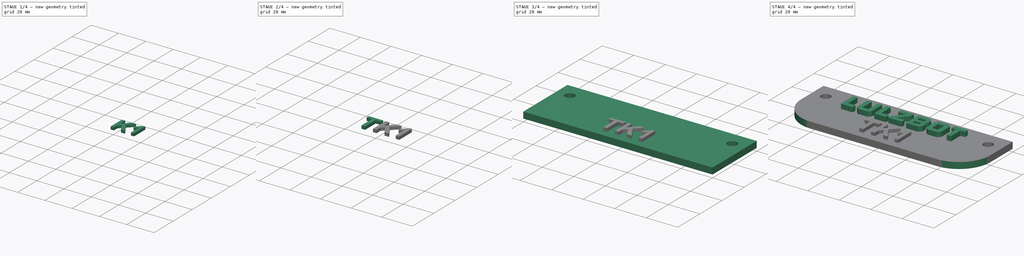
[diagram: build sequence overview — one tinted view per stage of 4, left to right]
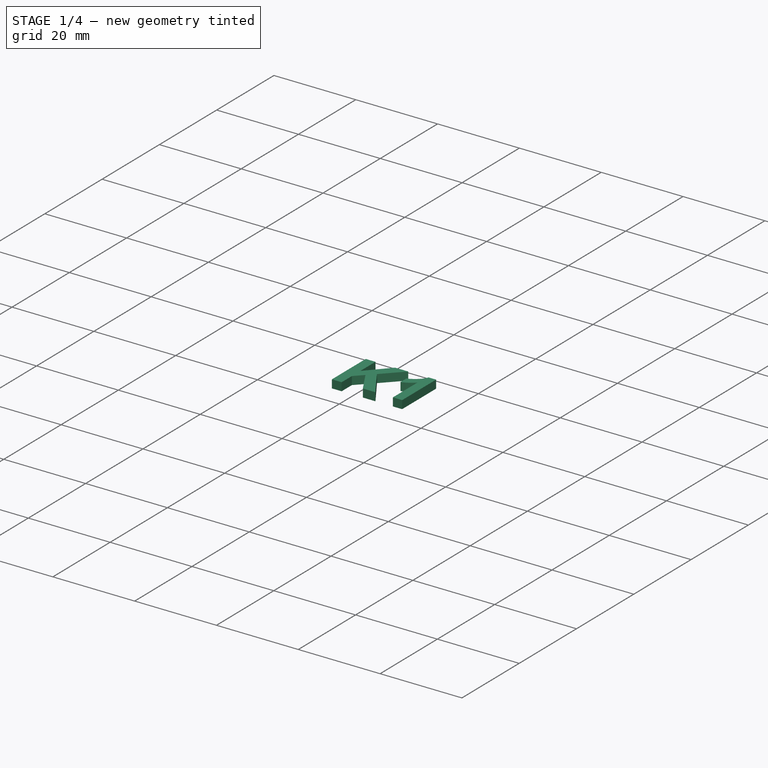
[diagram: stage 1 of 4 — iso view after this stage's code; geometry added in this stage tinted green]
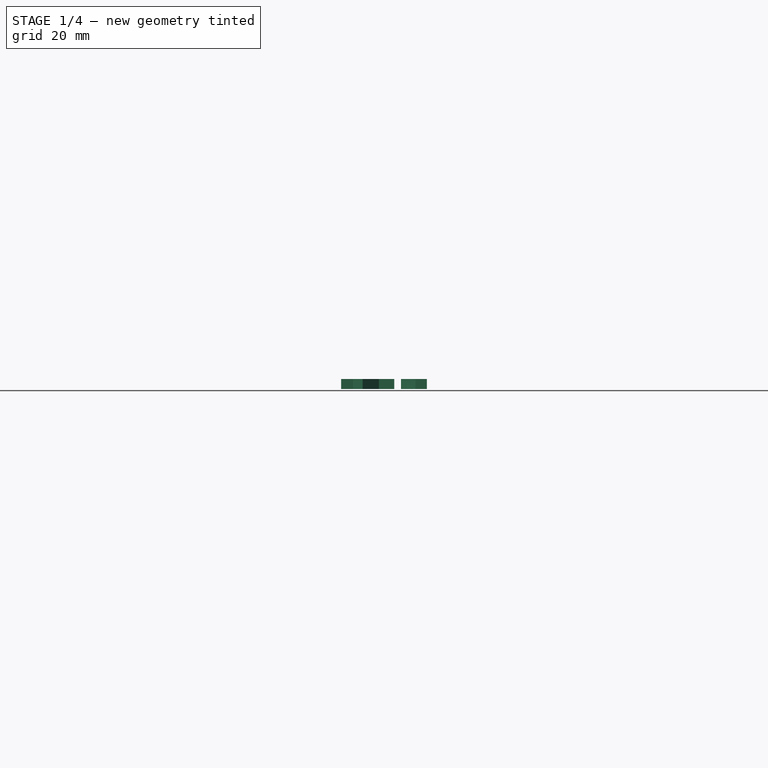
[diagram: stage 1 of 4 — front view after this stage's code; geometry added in this stage tinted green]
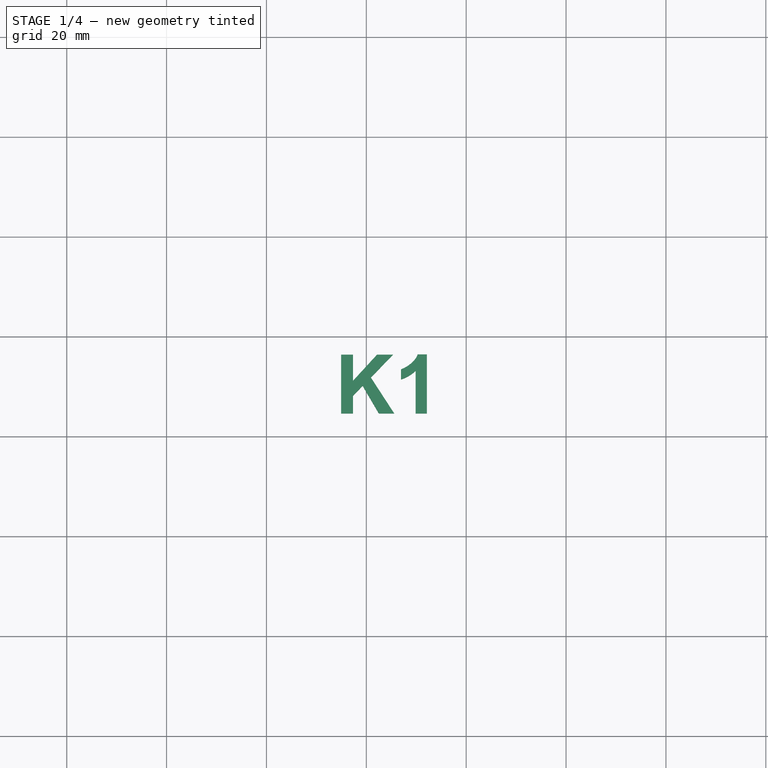
[diagram: stage 1 of 4 — top view after this stage's code; geometry added in this stage tinted green]
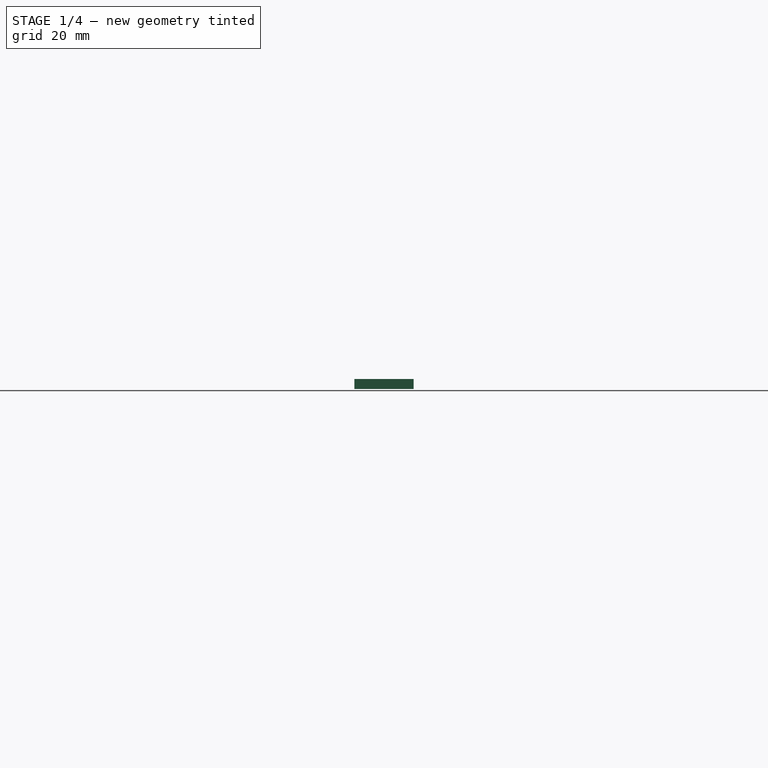
[diagram: stage 1 of 4 — right view after this stage's code; geometry added in this stage tinted green]
FCSTD DOCUMENT
Label: NamePlate
objects: Part::Feature×4, Sketcher::SketchObject×3, Part::Extrusion×3, Part::MultiFuse×2, PartDesign::Pad×1, PartDesign::Pocket×1, PartDesign::Mirrored×1, PartDesign::Fillet×1
note: 18 computed .brp shape members not serialized (recipe doc carries the construction recipe); baked Part::Feature solids carry a one-line shape summary decoded from their .brp

FEATURE [Part::Extrusion] Extrude001
  Base = -> Face001
  Dir = (0,0,2)
  Solid = false
FEATURE [Part::Extrusion] Extrude002
  Base = -> Face002
  Dir = (0,0,2)
  Solid = false
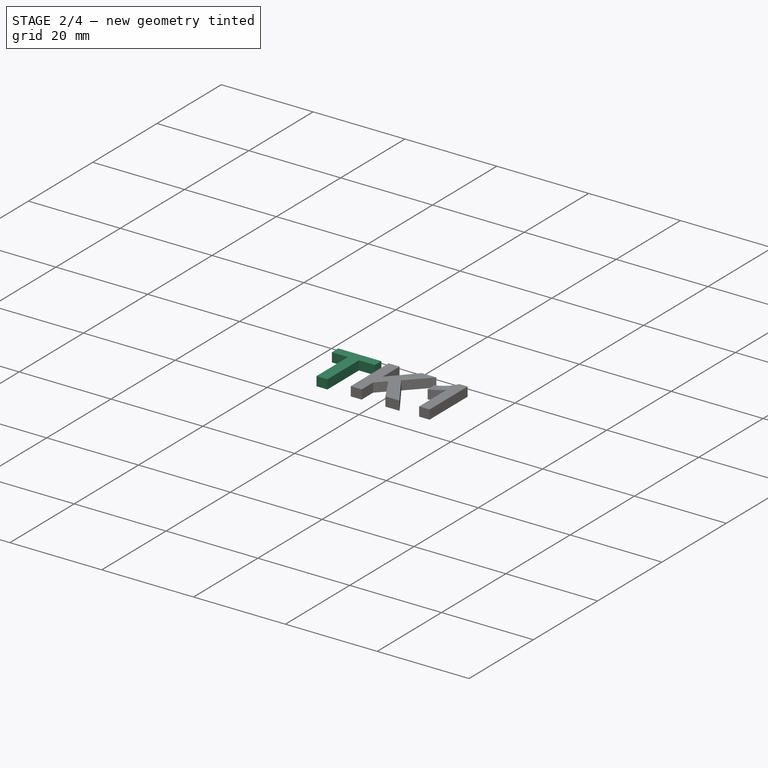
[diagram: stage 2 of 4 — iso view after this stage's code; geometry added in this stage tinted green]
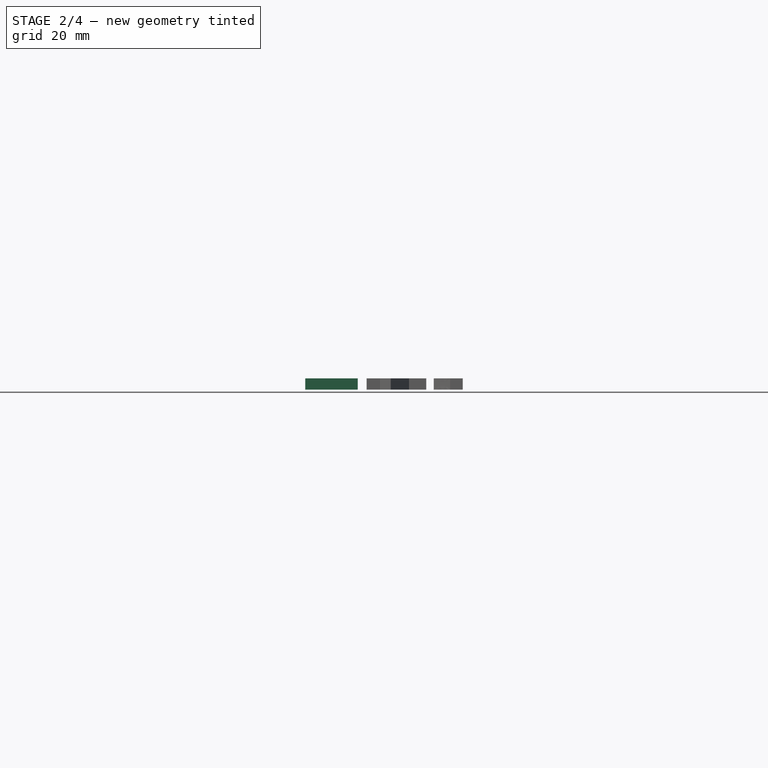
[diagram: stage 2 of 4 — front view after this stage's code; geometry added in this stage tinted green]
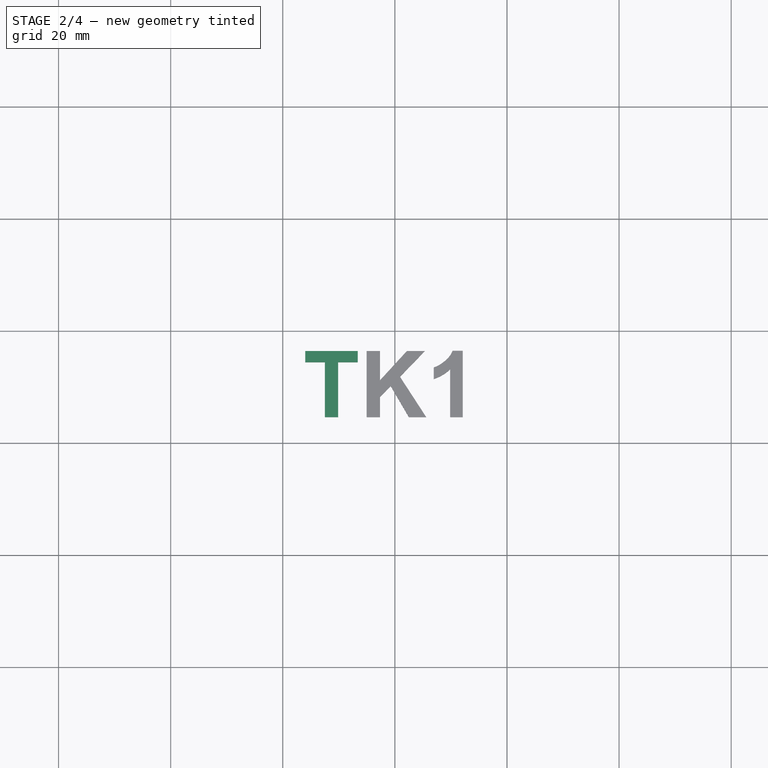
[diagram: stage 2 of 4 — top view after this stage's code; geometry added in this stage tinted green]
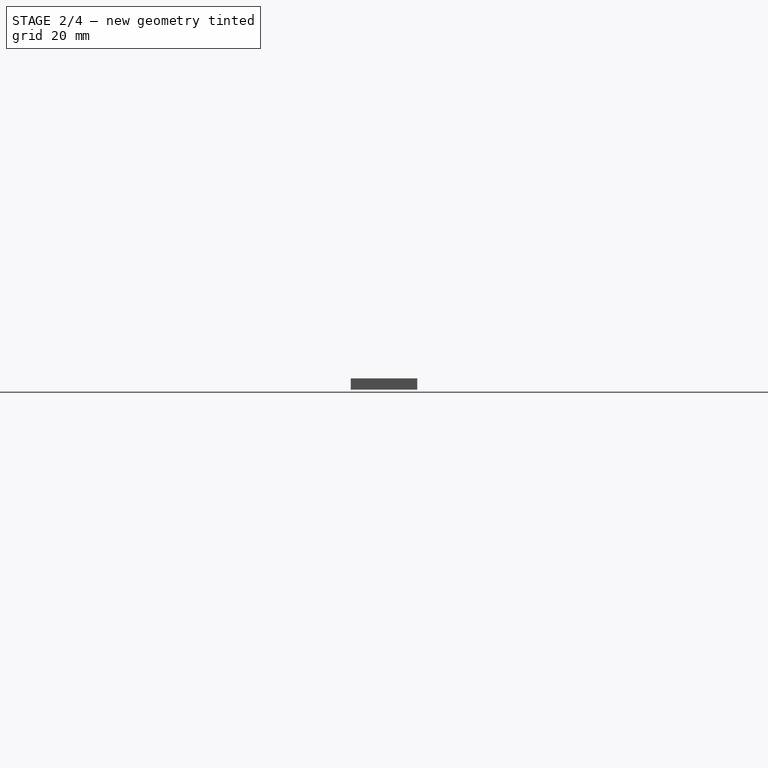
[diagram: stage 2 of 4 — right view after this stage's code; geometry added in this stage tinted green]
FEATURE [Part::Feature] LULZBOT_TEXT  label="LULZBOT"
  Placement = pos=(0,27.585,4) rot=(0,0,1;0rad)
  shape: bbox 76 x 15 x 4 mm, 218 faces (baked)
FEATURE [Sketcher::SketchObject] Sketch002
  Placement = pos=(0,0,4) rot=(0,0,1;0rad)
  Support = -> Fillet [Face5]
  sketch-geometry (1):
    g0: LineSegment StartX=-12.25 StartY=4.637 StartZ=0 EndX=12.354 EndY=4.637 EndZ=0
  constraints (4):
    c: Horizontal(g0)
    c: DistanceX(g0) = -12.25
    c: DistanceY(g0) = 4.637
    c: DistanceX(g0) = 24.604
FEATURE [Part::Feature] Face
  shape: bbox 9.376 x 11.8 x 2e-07 mm, 1 faces, 0 solids (baked)
FEATURE [Part::Feature] Face001
  shape: bbox 10.64 x 11.8 x 2e-07 mm, 1 faces, 0 solids (baked)
FEATURE [Part::Feature] Face002
  shape: bbox 5.183 x 11.85 x 2e-07 mm, 1 faces, 0 solids (baked)
FEATURE [Part::Extrusion] Extrude
  Base = -> Face
  Dir = (0,0,2)
  Solid = false
FEATURE [Part::MultiFuse] Fusion  label="TK1"
  Shapes = -> [Extrude,Extrude002,Extrude001]
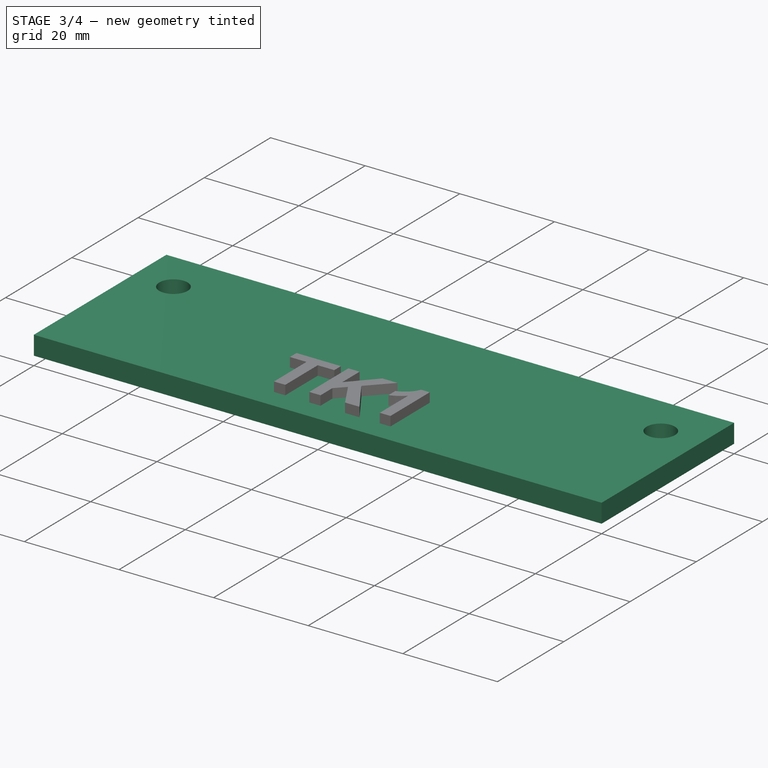
[diagram: stage 3 of 4 — iso view after this stage's code; geometry added in this stage tinted green]
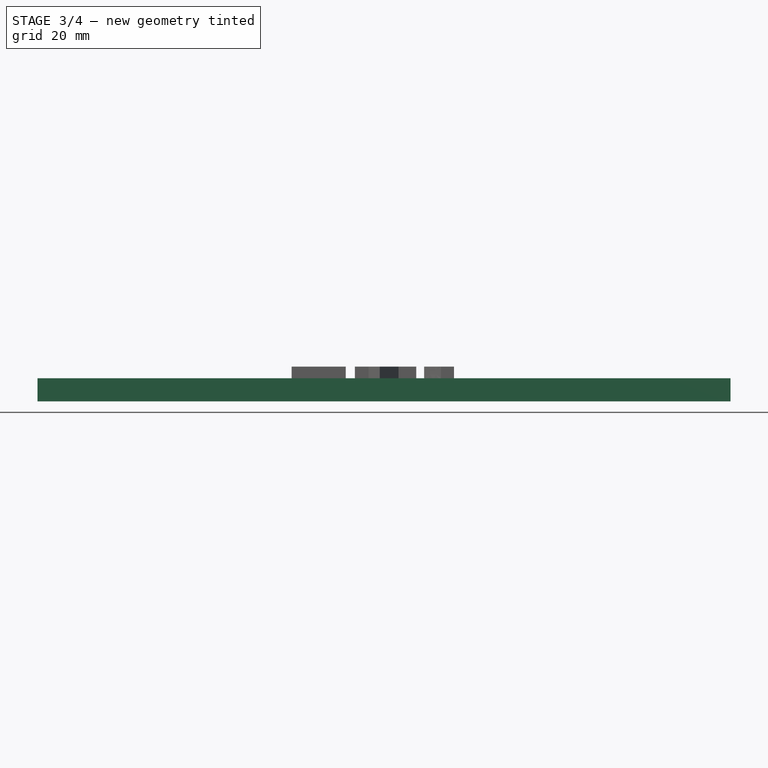
[diagram: stage 3 of 4 — front view after this stage's code; geometry added in this stage tinted green]
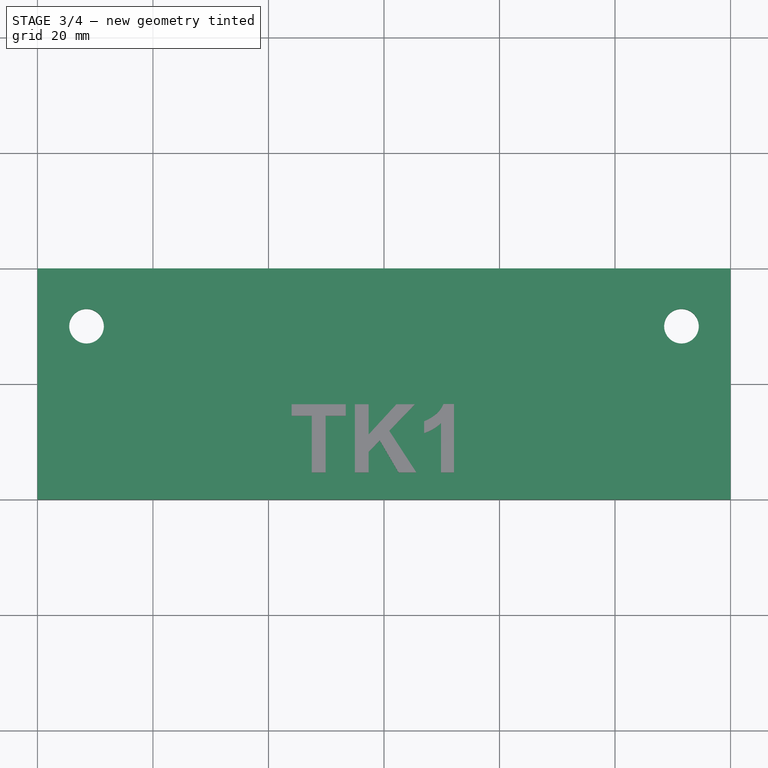
[diagram: stage 3 of 4 — top view after this stage's code; geometry added in this stage tinted green]
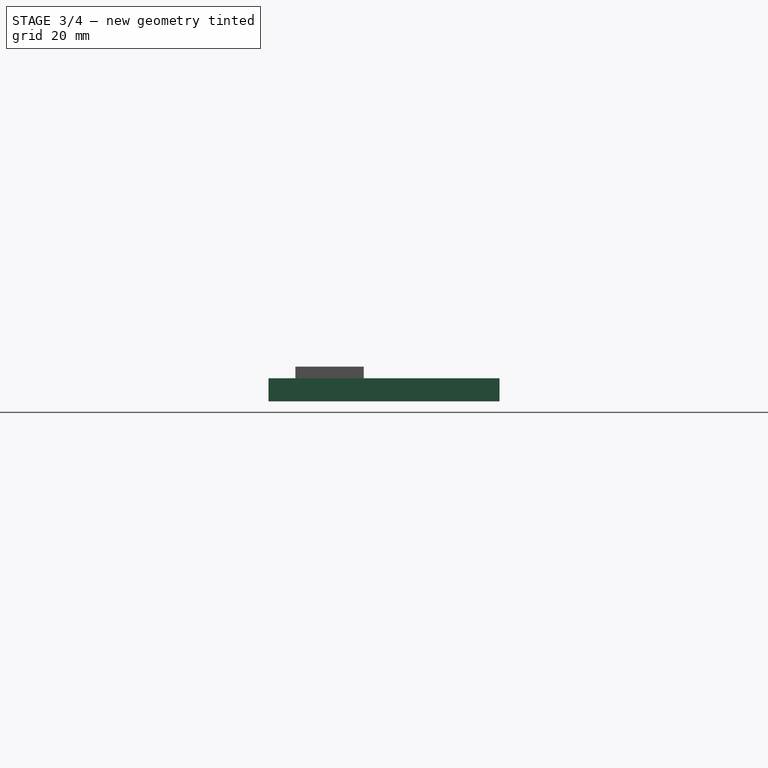
[diagram: stage 3 of 4 — right view after this stage's code; geometry added in this stage tinted green]
FEATURE [Sketcher::SketchObject] Sketch
  sketch-geometry (4):
    g0: LineSegment StartX=-60 StartY=0 StartZ=0 EndX=60 EndY=0 EndZ=0
    g1: LineSegment StartX=60 StartY=0 StartZ=0 EndX=60 EndY=40 EndZ=0
    g2: LineSegment StartX=60 StartY=40 StartZ=0 EndX=-60 EndY=40 EndZ=0
    g3: LineSegment StartX=-60 StartY=40 StartZ=0 EndX=-60 EndY=0 EndZ=0
  constraints (12):
    c: Coincident(g0,g1)
    c: Coincident(g1,g2)
    c: Coincident(g2,g3)
    c: Coincident(g3,g0)
    c: Horizontal(g0)
    c: Horizontal(g2)
    c: Vertical(g1)
    c: Vertical(g3)
    c: PointOnObject(g0,g-1)
    c: Symmetric(g0,g0,g-2)
    c: DistanceY(g1) = 40
    c: DistanceX(g2) = -120
FEATURE [PartDesign::Pad] Pad
  Length = 4
  Length2 = 100
  Sketch = -> Sketch
  Type = 0
FEATURE [Sketcher::SketchObject] Sketch001
  ExternalGeometry = -> [Pad]
  Placement = pos=(0,0,4) rot=(0,0,1;0rad)
  Support = -> Pad [Face6]
  sketch-geometry (1):
    g0: Circle CenterX=-51.5 CenterY=30 CenterZ=0 NormalX=0 NormalY=0 NormalZ=1 Radius=3
  constraints (3):
    c: Radius(g0) = 3
    c: DistanceX(g-3,g0) = 8.5
    c: DistanceY(g0,g-3) = 10
FEATURE [PartDesign::Pocket] Pocket
  Length = 5
  Sketch = -> Sketch001
  Type = 1
FEATURE [PartDesign::Mirrored] Mirrored
  Originals = -> [Pocket]
  StdMirrorPlane = YZ
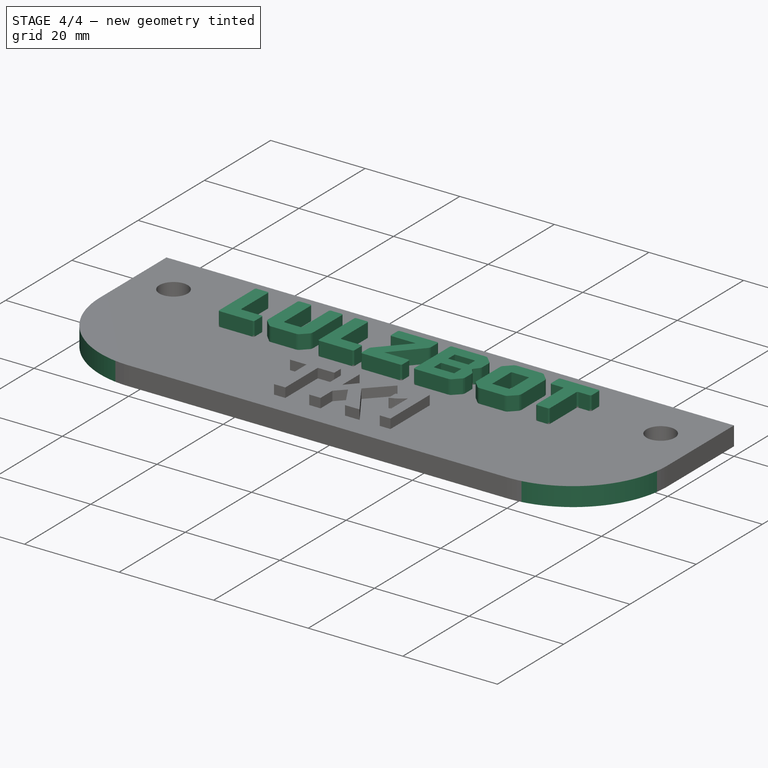
[diagram: stage 4 of 4 — iso view after this stage's code; geometry added in this stage tinted green]
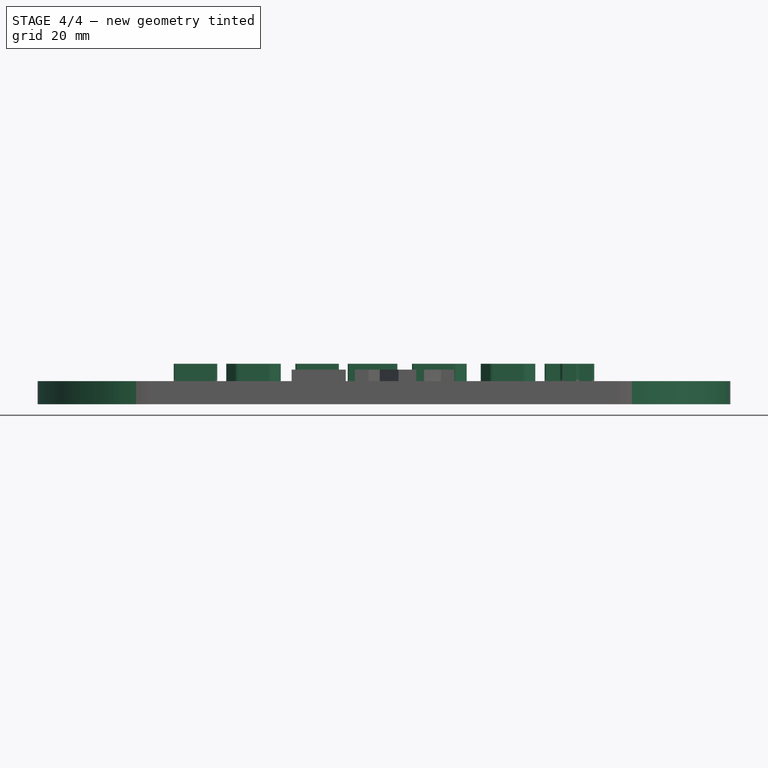
[diagram: stage 4 of 4 — front view after this stage's code; geometry added in this stage tinted green]
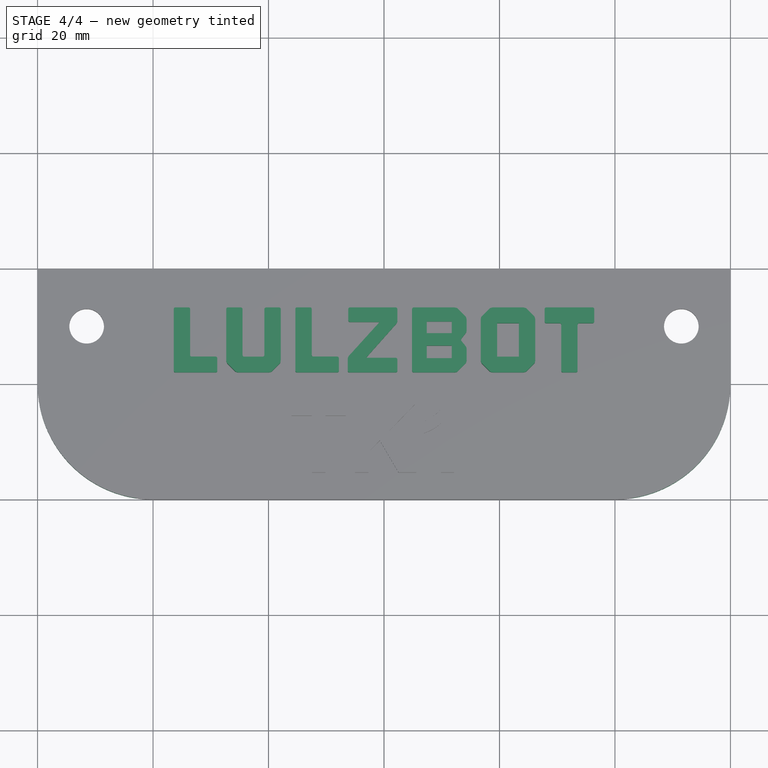
[diagram: stage 4 of 4 — top view after this stage's code; geometry added in this stage tinted green]
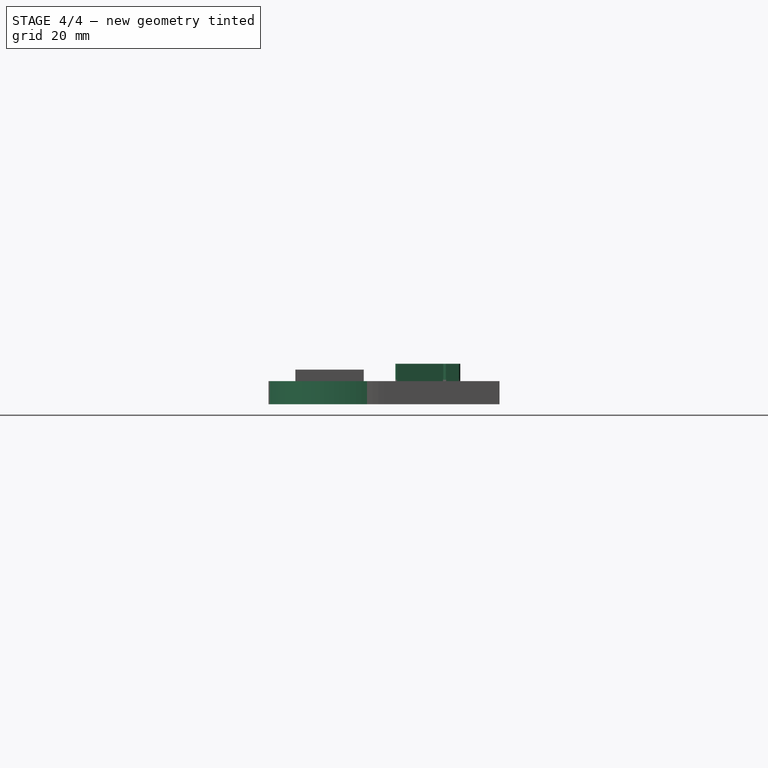
[diagram: stage 4 of 4 — right view after this stage's code; geometry added in this stage tinted green]
FEATURE [PartDesign::Fillet] Fillet
  Base = -> Mirrored [Edge1,Edge2]
  Radius = 20
FEATURE [Part::MultiFuse] Fusion001
  Shapes = -> [Fillet,LULZBOT_TEXT,Fusion]
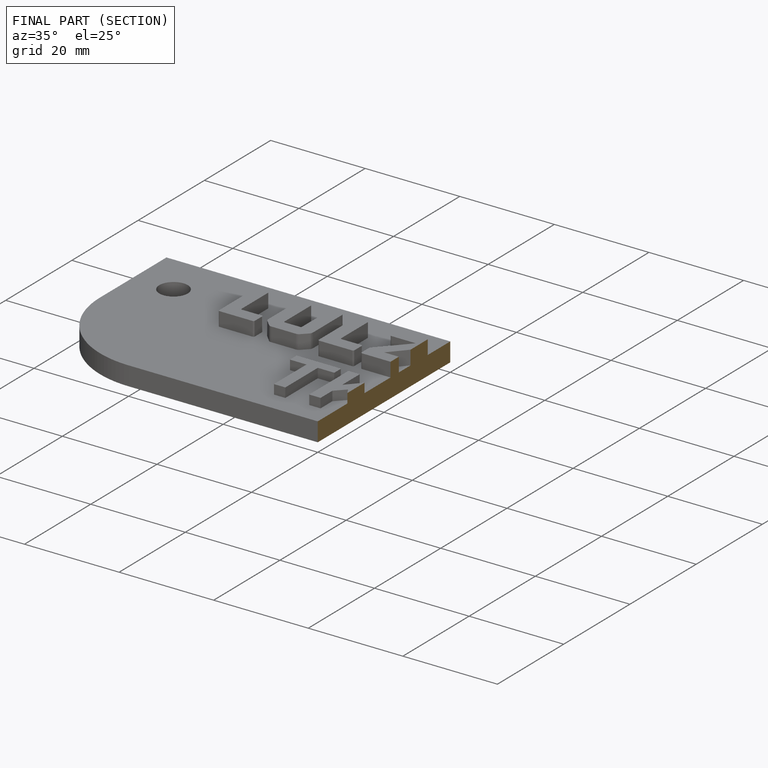
[diagram: finished part — half-section view (interior)]
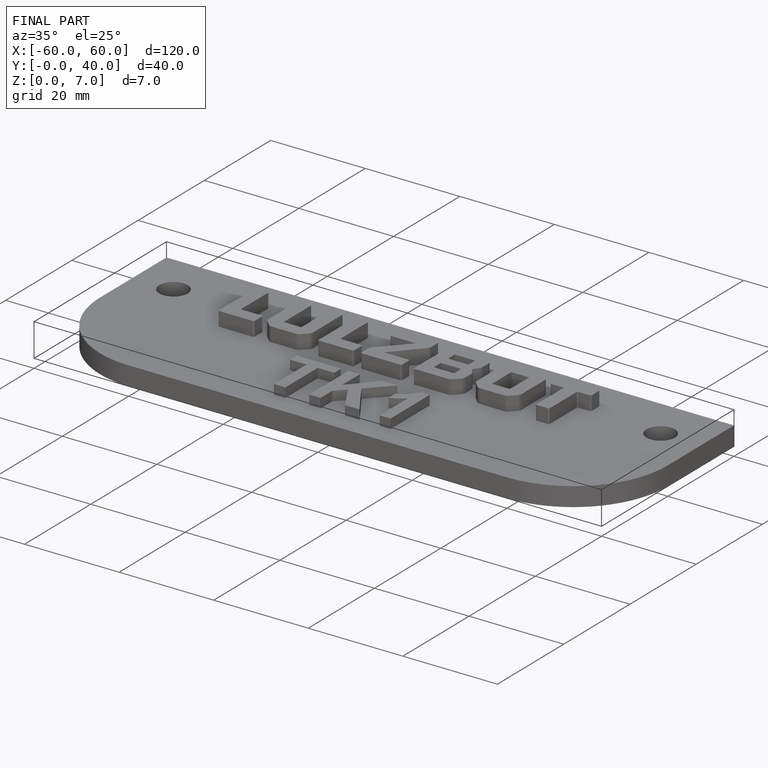
[diagram: finished part — iso view with bounding-box wireframe]
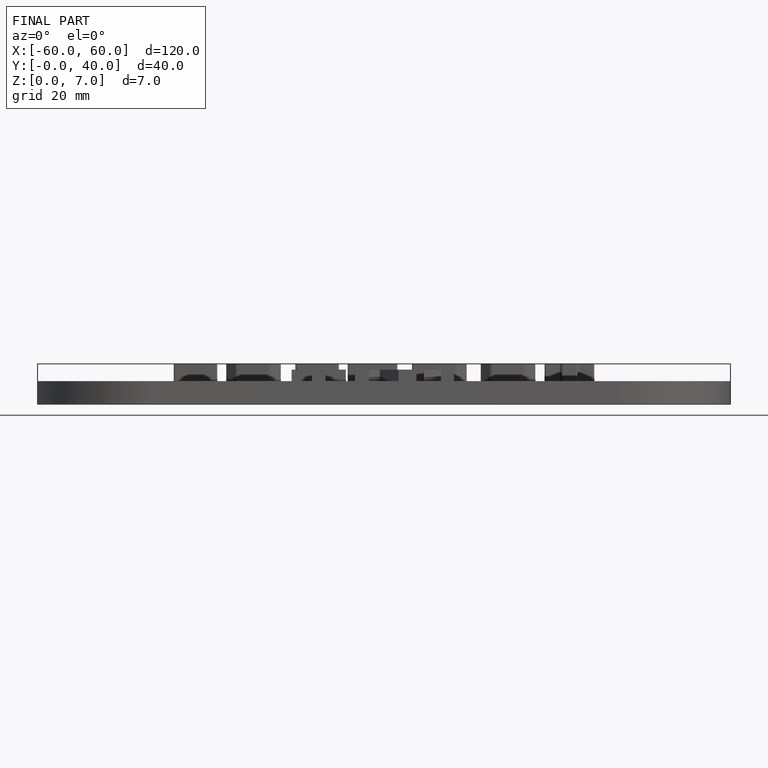
[diagram: finished part — front view with bounding-box wireframe]
